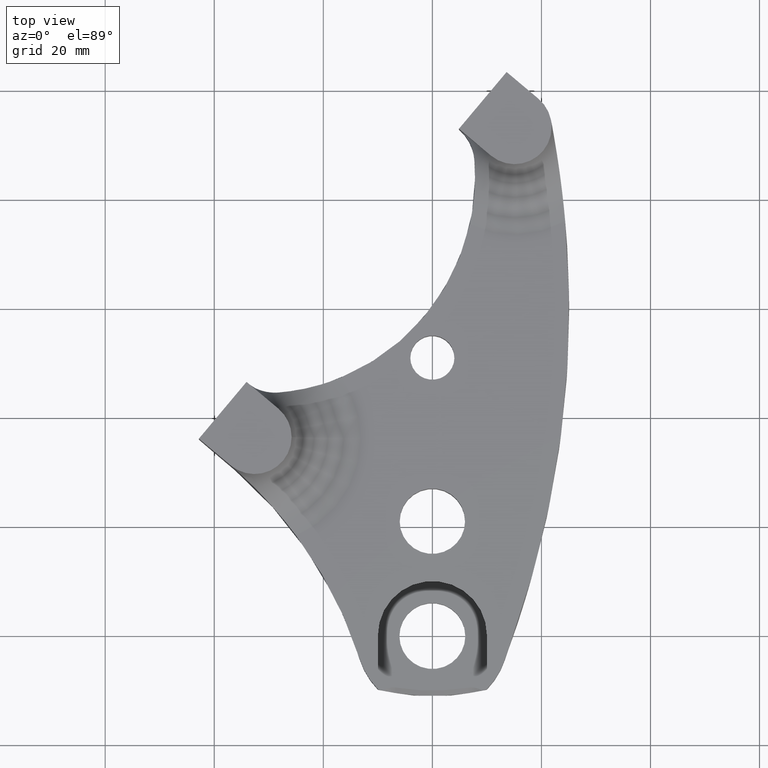
[diagram: clean part render]
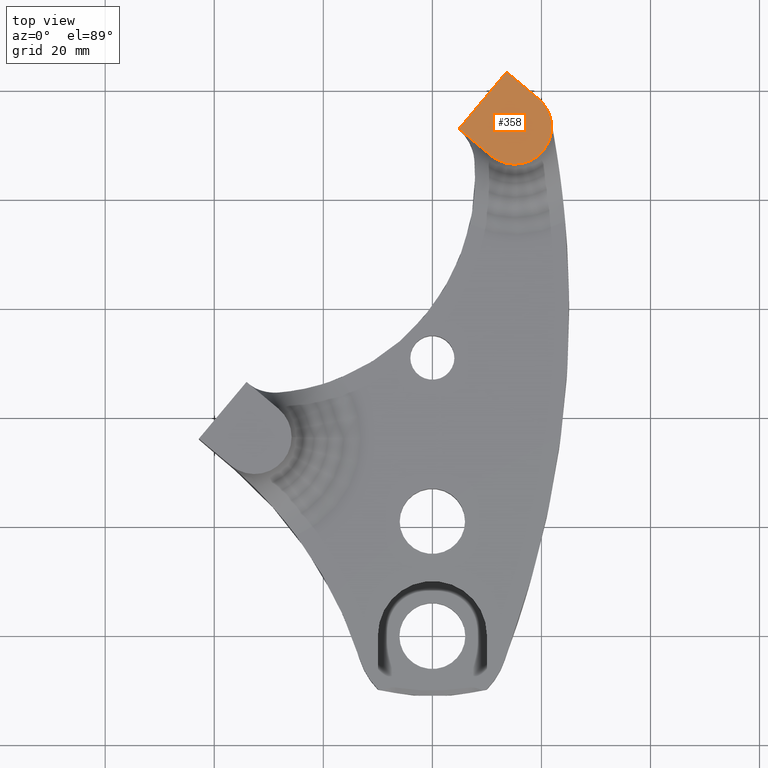
[diagram: same view with one face highlighted and labeled with its STEP entity id]
A machine part, top view. The second image highlights one B-rep face of the part: STEP entity #358.
In plain terms, the highlighted planar face has unit normal (0, 0, 1).
Its self-contained STEP definition (entity closure, byte-faithful):
#29 = CARTESIAN_POINT ( 'NONE',  ( 21.88117067082488300, 93.08338568830346600, 14.89999999999999700 ) ) ;
#47 = CARTESIAN_POINT ( 'NONE',  ( 15.08117067082488000, 93.08338568830346600, 14.89999999999999700 ) ) ;
#93 = VERTEX_POINT ( 'NONE', #2545 ) ;
#124 = VECTOR ( 'NONE', #1360, 999.9999999999998900 ) ;
#181 = ORIENTED_EDGE ( 'NONE', *, *, #1617, .F. ) ;
#293 = VERTEX_POINT ( 'NONE', #1138 ) ;
#342 = DIRECTION ( 'NONE',  ( 1.000000000000000000, 0.0000000000000000000, 0.0000000000000000000 ) ) ;
#358 = ADVANCED_FACE ( 'NONE', ( #3157 ), #662, .T. ) ;
#451 = VECTOR ( 'NONE', #741, 1000.000000000000100 ) ;
#477 = EDGE_LOOP ( 'NONE', ( #181, #2177, #631, #1583, #2308, #2476 ) ) ;
#517 = AXIS2_PLACEMENT_3D ( 'NONE', #47, #1938, #342 ) ;
#519 = AXIS2_PLACEMENT_3D ( 'NONE', #545, #2637, #806 ) ;
#545 = CARTESIAN_POINT ( 'NONE',  ( 15.08117067082488000, 93.08338568830346600, 14.89999999999999700 ) ) ;
#631 = ORIENTED_EDGE ( 'NONE', *, *, #3353, .T. ) ;
#662 = PLANE ( 'NONE',  #1641 ) ;
#667 = EDGE_CURVE ( 'NONE', #2112, #93, #2903, .T. ) ;
#719 = VERTEX_POINT ( 'NONE', #745 ) ;
#721 = DIRECTION ( 'NONE',  ( 1.000000000000000000, 0.0000000000000000000, 0.0000000000000000000 ) ) ;
#741 = DIRECTION ( 'NONE',  ( -0.7660444431189826800, 0.6427876096865338100, 0.0000000000000000000 ) ) ;
#745 = CARTESIAN_POINT ( 'NONE',  ( 13.61486776012667100, 103.1905294873239300, 14.89999999999999700 ) ) ;
#799 = CIRCLE ( 'NONE', #3547, 6.800000000000004300 ) ;
#806 = DIRECTION ( 'NONE',  ( 1.000000000000000000, 0.0000000000000000000, 0.0000000000000000000 ) ) ;
#897 = LINE ( 'NONE', #2799, #451 ) ;
#955 = DIRECTION ( 'NONE',  ( 0.0000000000000000000, 0.0000000000000000000, 1.000000000000000000 ) ) ;
#1080 = EDGE_CURVE ( 'NONE', #719, #2687, #1402, .T. ) ;
#1138 = CARTESIAN_POINT ( 'NONE',  ( 10.71021492495645200, 87.87428347509435900, 14.90000000000000000 ) ) ;
#1162 = CARTESIAN_POINT ( 'NONE',  ( 15.08117067082488000, 93.08338568830346600, 14.89999999999999700 ) ) ;
#1360 = DIRECTION ( 'NONE',  ( -0.7660444431189812300, 0.6427876096865357000, -0.0000000000000000000 ) ) ;
#1384 = DIRECTION ( 'NONE',  ( 0.0000000000000000000, 0.0000000000000000000, 1.000000000000000000 ) ) ;
#1398 = LINE ( 'NONE', #2605, #124 ) ;
#1402 = LINE ( 'NONE', #2418, #3505 ) ;
#1457 = CIRCLE ( 'NONE', #517, 6.800000000000004300 ) ;
#1516 = CARTESIAN_POINT ( 'NONE',  ( 4.872956268389810200, 92.77232506090577100, 14.90000000000000000 ) ) ;
#1583 = ORIENTED_EDGE ( 'NONE', *, *, #667, .T. ) ;
#1617 = EDGE_CURVE ( 'NONE', #293, #2687, #1398, .T. ) ;
#1622 = VERTEX_POINT ( 'NONE', #29 ) ;
#1626 = EDGE_CURVE ( 'NONE', #93, #719, #897, .T. ) ;
#1641 = AXIS2_PLACEMENT_3D ( 'NONE', #2001, #955, #2265 ) ;
#1938 = DIRECTION ( 'NONE',  ( 0.0000000000000000000, 0.0000000000000000000, 1.000000000000000000 ) ) ;
#2001 = CARTESIAN_POINT ( 'NONE',  ( 0.0000000000000000000, 0.0000000000000000000, 14.90000000000000000 ) ) ;
#2112 = VERTEX_POINT ( 'NONE', #2127 ) ;
#2127 = CARTESIAN_POINT ( 'NONE',  ( 21.75549328990624400, 94.38469947691052700, 14.89999999999999700 ) ) ;
#2177 = ORIENTED_EDGE ( 'NONE', *, *, #2861, .T. ) ;
#2265 = DIRECTION ( 'NONE',  ( 1.000000000000000000, 0.0000000000000000000, -0.0000000000000000000 ) ) ;
#2308 = ORIENTED_EDGE ( 'NONE', *, *, #1626, .T. ) ;
#2418 = CARTESIAN_POINT ( 'NONE',  ( 4.872956268389817300, 92.77232506090577100, 14.89999999999999700 ) ) ;
#2476 = ORIENTED_EDGE ( 'NONE', *, *, #1080, .T. ) ;
#2488 = DIRECTION ( 'NONE',  ( -0.6427876096865334800, -0.7660444431189829000, 0.0000000000000000000 ) ) ;
#2545 = CARTESIAN_POINT ( 'NONE',  ( 19.45212641669331800, 98.29248790151254400, 14.89999999999999700 ) ) ;
#2605 = CARTESIAN_POINT ( 'NONE',  ( 4.872956268389810200, 92.77232506090577100, 14.90000000000000000 ) ) ;
#2637 = DIRECTION ( 'NONE',  ( 0.0000000000000000000, 0.0000000000000000000, 1.000000000000000000 ) ) ;
#2687 = VERTEX_POINT ( 'NONE', #1516 ) ;
#2799 = CARTESIAN_POINT ( 'NONE',  ( 13.61486776012667100, 103.1905294873239300, 14.89999999999999700 ) ) ;
#2861 = EDGE_CURVE ( 'NONE', #293, #1622, #799, .T. ) ;
#2903 = CIRCLE ( 'NONE', #519, 6.800000000000004300 ) ;
#3157 = FACE_OUTER_BOUND ( 'NONE', #477, .T. ) ;
#3353 = EDGE_CURVE ( 'NONE', #1622, #2112, #1457, .T. ) ;
#3505 = VECTOR ( 'NONE', #2488, 1000.000000000000000 ) ;
#3547 = AXIS2_PLACEMENT_3D ( 'NONE', #1162, #1384, #721 ) ;